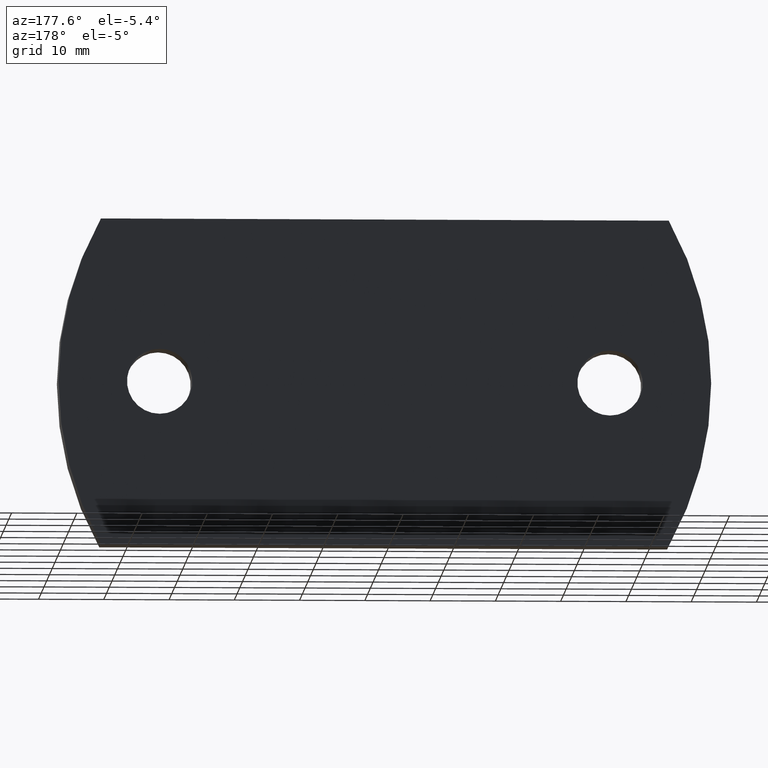
[diagram: clean part render]
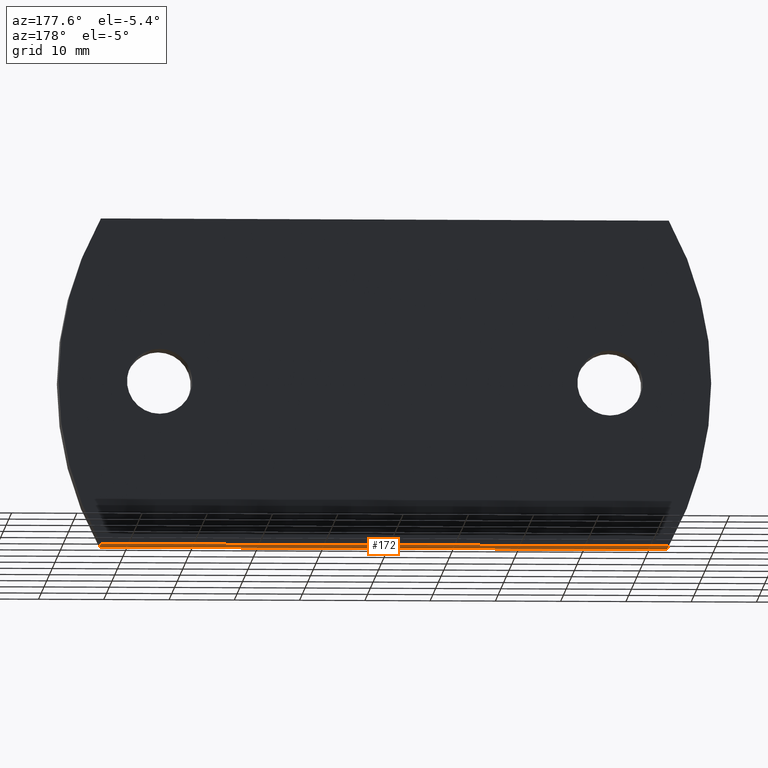
[diagram: same view with one face highlighted and labeled with its STEP entity id]
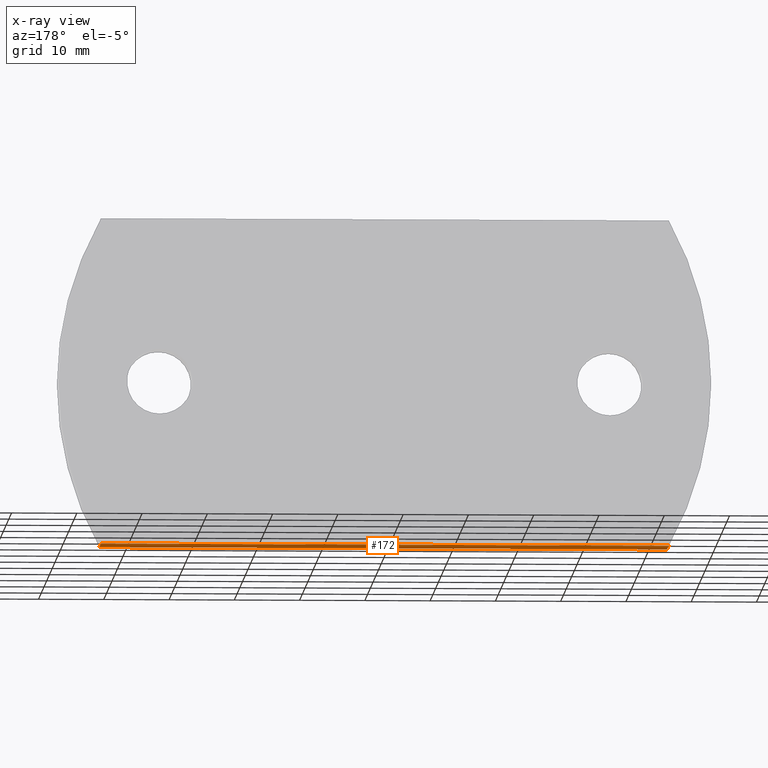
[diagram: x-ray of the same camera — body ghosted, the highlighted face saturated]
A machine part, auxiliary view. The second image highlights one B-rep face of the part: STEP entity #172.
The next image is the same camera in x-ray: the body ghosted, the highlighted face saturated — about 0% of this face is hidden behind the body in this view.
In plain terms, the highlighted planar face has unit normal (0, -0, 1).
Its self-contained STEP definition (entity closure, byte-faithful):
#172 = ADVANCED_FACE ( 'NONE', ( #4744 ), #330, .F. ) ;
#275 = CARTESIAN_POINT ( 'NONE',  ( -43.50000000000000711, 3.000000000000000000, -25.00000000000000000 ) ) ;
#330 = PLANE ( 'NONE',  #8673 ) ;
#366 = EDGE_CURVE ( 'NONE', #9059, #6928, #4462, .T. ) ;
#681 = VERTEX_POINT ( 'NONE', #1145 ) ;
#1145 = CARTESIAN_POINT ( 'NONE',  ( -43.50000000000000711, -3.000000000000000000, -25.00000000000000000 ) ) ;
#1313 = VECTOR ( 'NONE', #6162, 1000.000000000000000 ) ;
#1382 = EDGE_CURVE ( 'NONE', #6928, #681, #10015, .T. ) ;
#2106 = ORIENTED_EDGE ( 'NONE', *, *, #3094, .F. ) ;
#2218 = VECTOR ( 'NONE', #4256, 1000.000000000000000 ) ;
#2508 = EDGE_CURVE ( 'NONE', #9059, #4130, #7700, .T. ) ;
#2781 = DIRECTION ( 'NONE',  ( 3.190296047773438629E-16, -0.000000000000000000, 1.000000000000000000 ) ) ;
#2883 = ORIENTED_EDGE ( 'NONE', *, *, #2508, .F. ) ;
#3094 = EDGE_CURVE ( 'NONE', #4130, #681, #3473, .T. ) ;
#3473 = LINE ( 'NONE', #5347, #1313 ) ;
#3554 = ORIENTED_EDGE ( 'NONE', *, *, #366, .T. ) ;
#3929 = DIRECTION ( 'NONE',  ( -0.000000000000000000, -1.000000000000000000, -0.000000000000000000 ) ) ;
#4130 = VERTEX_POINT ( 'NONE', #5190 ) ;
#4256 = DIRECTION ( 'NONE',  ( -1.000000000000000000, -0.000000000000000000, 3.190296047773438629E-16 ) ) ;
#4462 = LINE ( 'NONE', #10212, #8575 ) ;
#4643 = CARTESIAN_POINT ( 'NONE',  ( -43.50000000000000711, 3.000000000000000000, -25.00000000000000000 ) ) ;
#4744 = FACE_OUTER_BOUND ( 'NONE', #6954, .T. ) ;
#5190 = CARTESIAN_POINT ( 'NONE',  ( -43.50000000000000711, 3.000000000000000000, -25.00000000000000000 ) ) ;
#5347 = CARTESIAN_POINT ( 'NONE',  ( -43.50000000000000711, 3.000000000000000000, -25.00000000000000000 ) ) ;
#5556 = DIRECTION ( 'NONE',  ( -1.000000000000000000, -0.000000000000000000, 3.190296047773438629E-16 ) ) ;
#6162 = DIRECTION ( 'NONE',  ( -0.000000000000000000, -1.000000000000000000, -0.000000000000000000 ) ) ;
#6541 = ORIENTED_EDGE ( 'NONE', *, *, #1382, .T. ) ;
#6928 = VERTEX_POINT ( 'NONE', #8625 ) ;
#6930 = VECTOR ( 'NONE', #5556, 1000.000000000000000 ) ;
#6954 = EDGE_LOOP ( 'NONE', ( #6541, #2106, #2883, #3554 ) ) ;
#7700 = LINE ( 'NONE', #4643, #6930 ) ;
#8176 = CARTESIAN_POINT ( 'NONE',  ( -43.50000000000000711, -3.000000000000000000, -25.00000000000000000 ) ) ;
#8382 = CARTESIAN_POINT ( 'NONE',  ( 43.49999999999999289, 3.000000000000000000, -25.00000000000002842 ) ) ;
#8575 = VECTOR ( 'NONE', #3929, 1000.000000000000000 ) ;
#8625 = CARTESIAN_POINT ( 'NONE',  ( 43.49999999999999289, -3.000000000000000000, -25.00000000000002842 ) ) ;
#8673 = AXIS2_PLACEMENT_3D ( 'NONE', #275, #2781, #9108 ) ;
#9059 = VERTEX_POINT ( 'NONE', #8382 ) ;
#9108 = DIRECTION ( 'NONE',  ( 1.000000000000000000, 0.000000000000000000, -3.190296047773438629E-16 ) ) ;
#10015 = LINE ( 'NONE', #8176, #2218 ) ;
#10212 = CARTESIAN_POINT ( 'NONE',  ( 43.49999999999999289, 3.000000000000000000, -25.00000000000002842 ) ) ;